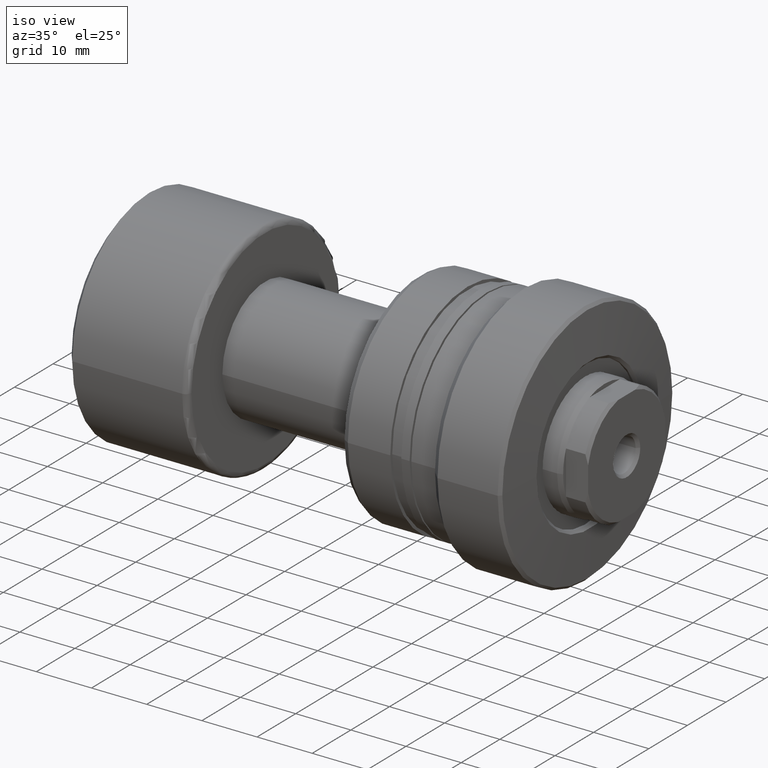
[diagram: clean part render]
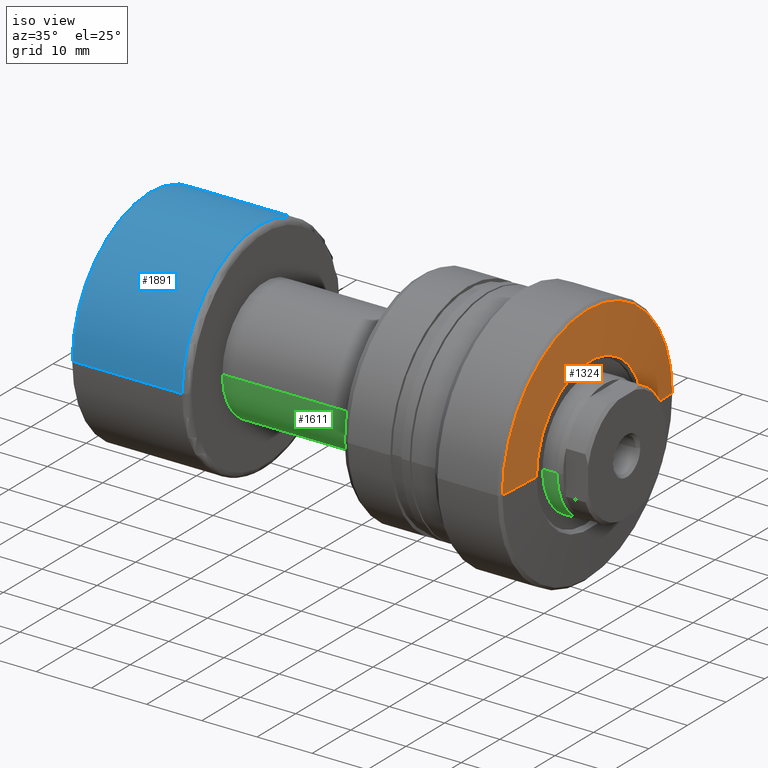
[diagram: same view with three faces highlighted in distinct colors, each labeled with its STEP entity id]
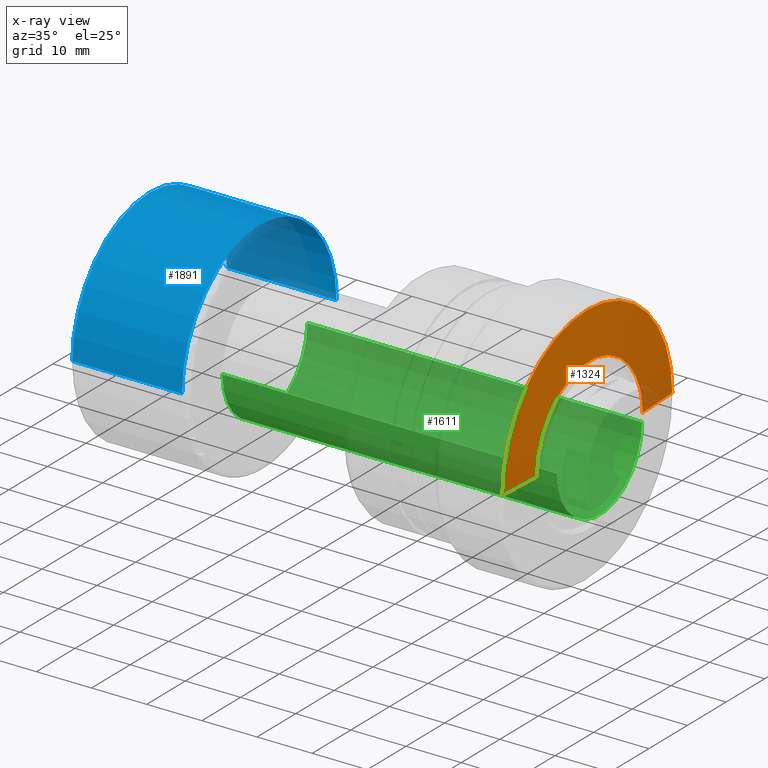
[diagram: x-ray of the same camera — body ghosted, the three highlighted faces saturated]
A machine part, iso view with three faces highlighted in distinct colors.
The next image is the same camera in x-ray (body ghosted, the three faces saturated) — at least one of them is partly hidden behind the body in this view.
Their STEP definitions:

[orange] entity #1324 — the highlighted conical surface has half-angle 87.138 deg.
#97 = EDGE_CURVE ( 'NONE', #1531, #377, #2340, .T. ) ;
#211 = ORIENTED_EDGE ( 'NONE', *, *, #1233, .T. ) ;
#355 = EDGE_LOOP ( 'NONE', ( #1907, #211, #2078, #902 ) ) ;
#377 = VERTEX_POINT ( 'NONE', #1170 ) ;
#393 = VECTOR ( 'NONE', #1277, 1000.000000000000000 ) ;
#471 = DIRECTION ( 'NONE',  ( -0.04993761694392248596, -0.9987523388778432043, 0.000000000000000000 ) ) ;
#548 = EDGE_CURVE ( 'NONE', #1156, #377, #663, .T. ) ;
#599 = DIRECTION ( 'NONE',  ( -1.000000000000000000, -3.039592211588226037E-15, 0.000000000000000000 ) ) ;
#663 = LINE ( 'NONE', #2132, #1678 ) ;
#849 = CARTESIAN_POINT ( 'NONE',  ( -1.100000000000799227, 22.00000000000015277, 2.724839128102870063E-15 ) ) ;
#902 = ORIENTED_EDGE ( 'NONE', *, *, #548, .F. ) ;
#1067 = FACE_OUTER_BOUND ( 'NONE', #355, .T. ) ;
#1080 = CARTESIAN_POINT ( 'NONE',  ( -1.100000000000732392, 8.869536993631697946E-14, 0.000000000000000000 ) ) ;
#1089 = LINE ( 'NONE', #2169, #393 ) ;
#1156 = VERTEX_POINT ( 'NONE', #2110 ) ;
#1170 = CARTESIAN_POINT ( 'NONE',  ( -1.100000000000665556, -21.99999999999997158, 0.000000000000000000 ) ) ;
#1183 = AXIS2_PLACEMENT_3D ( 'NONE', #1080, #1813, #1637 ) ;
#1213 = AXIS2_PLACEMENT_3D ( 'NONE', #2111, #1567, #2313 ) ;
#1233 = EDGE_CURVE ( 'NONE', #1609, #1531, #1089, .T. ) ;
#1277 = DIRECTION ( 'NONE',  ( -0.04993761694392855749, 0.9987523388778428712, 1.223118854947682994E-16 ) ) ;
#1324 = ADVANCED_FACE ( 'NONE', ( #1067 ), #1330, .T. ) ;
#1330 = CONICAL_SURFACE ( 'NONE', #1183, 22.00000000000006040, 1.520837931072920535 ) ;
#1384 = CIRCLE ( 'NONE', #2389, 13.74937616943892849 ) ;
#1517 = CARTESIAN_POINT ( 'NONE',  ( -0.6874688084723999948, 8.994929653312370924E-14, 0.000000000000000000 ) ) ;
#1531 = VERTEX_POINT ( 'NONE', #849 ) ;
#1567 = DIRECTION ( 'NONE',  ( 1.000000000000000000, 3.039592211588219332E-15, -0.000000000000000000 ) ) ;
#1609 = VERTEX_POINT ( 'NONE', #2382 ) ;
#1637 = DIRECTION ( 'NONE',  ( 3.035766082959404132E-15, -1.000000000000000000, 0.000000000000000000 ) ) ;
#1678 = VECTOR ( 'NONE', #471, 1000.000000000000114 ) ;
#1813 = DIRECTION ( 'NONE',  ( -1.000000000000000000, -3.039592211588219332E-15, 0.000000000000000000 ) ) ;
#1907 = ORIENTED_EDGE ( 'NONE', *, *, #2414, .T. ) ;
#2078 = ORIENTED_EDGE ( 'NONE', *, *, #97, .T. ) ;
#2110 = CARTESIAN_POINT ( 'NONE',  ( -0.6874688084723582504, -13.74937616943883789, 0.000000000000000000 ) ) ;
#2111 = CARTESIAN_POINT ( 'NONE',  ( -1.100000000000732392, 8.869536993631697946E-14, 0.000000000000000000 ) ) ;
#2132 = CARTESIAN_POINT ( 'NONE',  ( -1.100000000000665556, -21.99999999999997158, 0.000000000000000000 ) ) ;
#2169 = CARTESIAN_POINT ( 'NONE',  ( -1.100000000000799227, 22.00000000000015277, 2.694222958124184698E-15 ) ) ;
#2253 = DIRECTION ( 'NONE',  ( -3.035903820383676297E-15, 1.000000000000000000, 0.000000000000000000 ) ) ;
#2313 = DIRECTION ( 'NONE',  ( -3.035766082959404132E-15, 1.000000000000000000, 0.000000000000000000 ) ) ;
#2340 = CIRCLE ( 'NONE', #1213, 22.00000000000006040 ) ;
#2382 = CARTESIAN_POINT ( 'NONE',  ( -0.6874688084724417392, 13.74937616943901908, 2.189017954870906259E-15 ) ) ;
#2389 = AXIS2_PLACEMENT_3D ( 'NONE', #1517, #599, #2253 ) ;
#2414 = EDGE_CURVE ( 'NONE', #1156, #1609, #1384, .T. ) ;

[blue] entity #1891 — the highlighted cylindrical surface (partial cylindrical patch) has radius 20 mm, axis along (-1, -0, -0).
#10 = EDGE_CURVE ( 'NONE', #792, #270, #2255, .T. ) ;
#21 = AXIS2_PLACEMENT_3D ( 'NONE', #759, #181, #2438 ) ;
#174 = DIRECTION ( 'NONE',  ( 1.069542322069065955E-17, -1.000000000000000000, 0.000000000000000000 ) ) ;
#181 = DIRECTION ( 'NONE',  ( -1.000000000000000000, -1.069542322069065801E-17, -0.000000000000000000 ) ) ;
#213 = EDGE_CURVE ( 'NONE', #792, #699, #1933, .T. ) ;
#270 = VERTEX_POINT ( 'NONE', #2372 ) ;
#334 = EDGE_CURVE ( 'NONE', #699, #858, #1867, .T. ) ;
#363 = CARTESIAN_POINT ( 'NONE',  ( 1.500000000000002442, 20.00000000000000000, 0.000000000000000000 ) ) ;
#371 = FACE_OUTER_BOUND ( 'NONE', #1167, .T. ) ;
#423 = ORIENTED_EDGE ( 'NONE', *, *, #334, .F. ) ;
#601 = CARTESIAN_POINT ( 'NONE',  ( -2.139084644138131786E-16, 20.00000000000000000, 2.449293598294706513E-15 ) ) ;
#699 = VERTEX_POINT ( 'NONE', #1725 ) ;
#759 = CARTESIAN_POINT ( 'NONE',  ( 21.40000000000000213, 2.288820569227801297E-16, 0.000000000000000000 ) ) ;
#792 = VERTEX_POINT ( 'NONE', #2082 ) ;
#858 = VERTEX_POINT ( 'NONE', #363 ) ;
#880 = VECTOR ( 'NONE', #963, 1000.000000000000000 ) ;
#898 = ORIENTED_EDGE ( 'NONE', *, *, #10, .T. ) ;
#910 = DIRECTION ( 'NONE',  ( 1.084202172485504434E-17, -1.000000000000000000, 0.000000000000000000 ) ) ;
#962 = CARTESIAN_POINT ( 'NONE',  ( 1.500000000000002442, 1.604313483103601552E-17, 0.000000000000000000 ) ) ;
#963 = DIRECTION ( 'NONE',  ( -1.000000000000000000, -1.069542322069065801E-17, -0.000000000000000000 ) ) ;
#1124 = CARTESIAN_POINT ( 'NONE',  ( 0.000000000000000000, 0.000000000000000000, 0.000000000000000000 ) ) ;
#1167 = EDGE_LOOP ( 'NONE', ( #898, #1657, #423, #2345 ) ) ;
#1175 = VECTOR ( 'NONE', #1561, 1000.000000000000000 ) ;
#1264 = CARTESIAN_POINT ( 'NONE',  ( 2.139084644138131786E-16, -20.00000000000000000, 0.000000000000000000 ) ) ;
#1561 = DIRECTION ( 'NONE',  ( -1.000000000000000000, -1.069542322069065801E-17, -0.000000000000000000 ) ) ;
#1603 = AXIS2_PLACEMENT_3D ( 'NONE', #962, #1692, #910 ) ;
#1657 = ORIENTED_EDGE ( 'NONE', *, *, #2007, .T. ) ;
#1668 = CYLINDRICAL_SURFACE ( 'NONE', #1960, 20.00000000000000000 ) ;
#1692 = DIRECTION ( 'NONE',  ( -1.000000000000000000, -1.069542322069065801E-17, -0.000000000000000000 ) ) ;
#1725 = CARTESIAN_POINT ( 'NONE',  ( 1.500000000000002887, -20.00000000000000000, 2.449293598294706513E-15 ) ) ;
#1858 = DIRECTION ( 'NONE',  ( -1.000000000000000000, -1.069542322069065801E-17, -0.000000000000000000 ) ) ;
#1867 = CIRCLE ( 'NONE', #1603, 20.00000000000000000 ) ;
#1891 = ADVANCED_FACE ( 'NONE', ( #371 ), #1668, .T. ) ;
#1933 = LINE ( 'NONE', #1264, #1175 ) ;
#1960 = AXIS2_PLACEMENT_3D ( 'NONE', #1124, #1858, #174 ) ;
#2007 = EDGE_CURVE ( 'NONE', #270, #858, #2256, .T. ) ;
#2082 = CARTESIAN_POINT ( 'NONE',  ( 21.40000000000000213, -20.00000000000000000, 0.000000000000000000 ) ) ;
#2255 = CIRCLE ( 'NONE', #21, 20.00000000000000000 ) ;
#2256 = LINE ( 'NONE', #601, #880 ) ;
#2345 = ORIENTED_EDGE ( 'NONE', *, *, #213, .F. ) ;
#2372 = CARTESIAN_POINT ( 'NONE',  ( 21.40000000000000213, 20.00000000000000000, 2.449293598294706513E-15 ) ) ;
#2438 = DIRECTION ( 'NONE',  ( 0.000000000000000000, -1.000000000000000000, 0.000000000000000000 ) ) ;

[green] entity #1611 — the highlighted cylindrical surface (partial cylindrical patch) has radius 11 mm, axis along (-1, -0, -0).
#32 = DIRECTION ( 'NONE',  ( -1.000000000000000000, -1.069542322069065801E-17, -0.000000000000000000 ) ) ;
#37 = CARTESIAN_POINT ( 'NONE',  ( 22.39999999999999858, -11.00000000000000000, 0.000000000000000000 ) ) ;
#157 = DIRECTION ( 'NONE',  ( 1.069542322069065955E-17, -1.000000000000000000, 0.000000000000000000 ) ) ;
#163 = CARTESIAN_POINT ( 'NONE',  ( 83.06675751232377536, 11.00000000000019185, 1.347111479062111873E-15 ) ) ;
#350 = CARTESIAN_POINT ( 'NONE',  ( 22.39999999999999858, 11.00000000000000000, 1.347111479062094124E-15 ) ) ;
#390 = VERTEX_POINT ( 'NONE', #37 ) ;
#503 = CARTESIAN_POINT ( 'NONE',  ( -1.176496554275982688E-16, 11.00000000000009415, 1.347111479062100238E-15 ) ) ;
#579 = DIRECTION ( 'NONE',  ( -1.000000000000000000, -1.069542322069065801E-17, -0.000000000000000000 ) ) ;
#610 = CARTESIAN_POINT ( 'NONE',  ( 1.176496554275982688E-16, -11.00000000000009415, 0.000000000000000000 ) ) ;
#626 = CARTESIAN_POINT ( 'NONE',  ( 83.06675751232377536, 8.884341271647877269E-16, 0.000000000000000000 ) ) ;
#720 = FACE_OUTER_BOUND ( 'NONE', #1313, .T. ) ;
#747 = CARTESIAN_POINT ( 'NONE',  ( 83.06675751232377536, -11.00000000000018829, 0.000000000000000000 ) ) ;
#757 = EDGE_CURVE ( 'NONE', #1886, #2238, #1218, .T. ) ;
#814 = DIRECTION ( 'NONE',  ( 0.000000000000000000, -1.000000000000000000, 0.000000000000000000 ) ) ;
#895 = CYLINDRICAL_SURFACE ( 'NONE', #1877, 11.00000000000009415 ) ;
#897 = VERTEX_POINT ( 'NONE', #350 ) ;
#920 = CARTESIAN_POINT ( 'NONE',  ( 0.000000000000000000, 0.000000000000000000, 0.000000000000000000 ) ) ;
#942 = CARTESIAN_POINT ( 'NONE',  ( 22.39999999999999858, 2.395774801434707739E-16, 0.000000000000000000 ) ) ;
#959 = VECTOR ( 'NONE', #1092, 1000.000000000000000 ) ;
#1092 = DIRECTION ( 'NONE',  ( -1.000000000000000000, -1.069542322069065801E-17, -0.000000000000000000 ) ) ;
#1098 = DIRECTION ( 'NONE',  ( -1.000000000000000000, -1.069542322069065801E-17, -0.000000000000000000 ) ) ;
#1218 = CIRCLE ( 'NONE', #1679, 11.00000000000019007 ) ;
#1313 = EDGE_LOOP ( 'NONE', ( #1408, #1921, #2149, #2397 ) ) ;
#1401 = EDGE_CURVE ( 'NONE', #2238, #390, #1859, .T. ) ;
#1408 = ORIENTED_EDGE ( 'NONE', *, *, #1540, .F. ) ;
#1421 = LINE ( 'NONE', #503, #959 ) ;
#1540 = EDGE_CURVE ( 'NONE', #1886, #897, #1421, .T. ) ;
#1572 = VECTOR ( 'NONE', #579, 1000.000000000000000 ) ;
#1611 = ADVANCED_FACE ( 'NONE', ( #720 ), #895, .T. ) ;
#1679 = AXIS2_PLACEMENT_3D ( 'NONE', #626, #32, #814 ) ;
#1689 = AXIS2_PLACEMENT_3D ( 'NONE', #942, #1098, #1874 ) ;
#1828 = EDGE_CURVE ( 'NONE', #897, #390, #1920, .T. ) ;
#1859 = LINE ( 'NONE', #610, #1572 ) ;
#1874 = DIRECTION ( 'NONE',  ( 0.000000000000000000, -1.000000000000000000, 0.000000000000000000 ) ) ;
#1877 = AXIS2_PLACEMENT_3D ( 'NONE', #920, #2367, #157 ) ;
#1886 = VERTEX_POINT ( 'NONE', #163 ) ;
#1920 = CIRCLE ( 'NONE', #1689, 11.00000000000000000 ) ;
#1921 = ORIENTED_EDGE ( 'NONE', *, *, #757, .T. ) ;
#2149 = ORIENTED_EDGE ( 'NONE', *, *, #1401, .T. ) ;
#2238 = VERTEX_POINT ( 'NONE', #747 ) ;
#2367 = DIRECTION ( 'NONE',  ( -1.000000000000000000, -1.069542322069065801E-17, -0.000000000000000000 ) ) ;
#2397 = ORIENTED_EDGE ( 'NONE', *, *, #1828, .F. ) ;